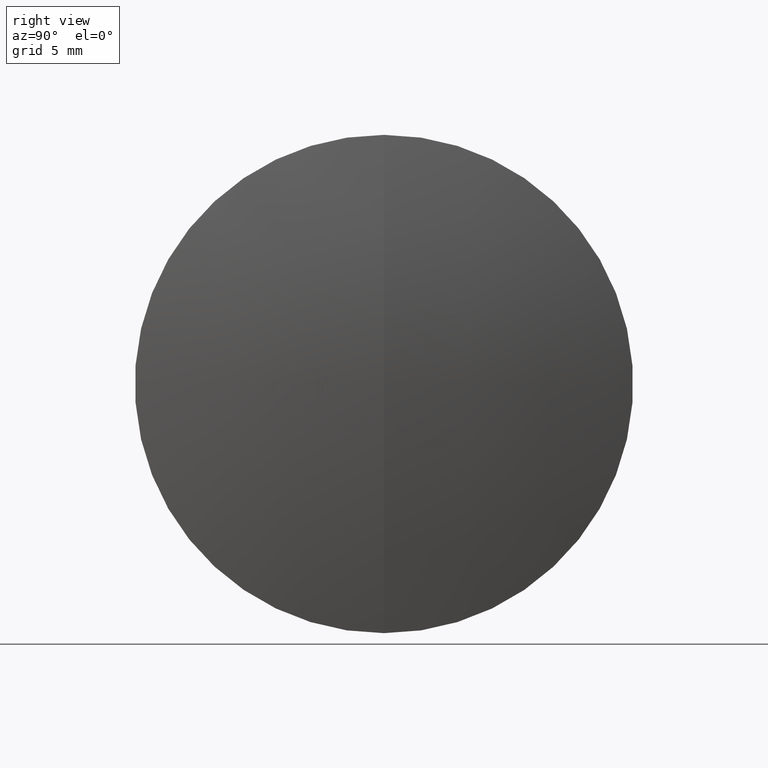
[diagram: clean part render]
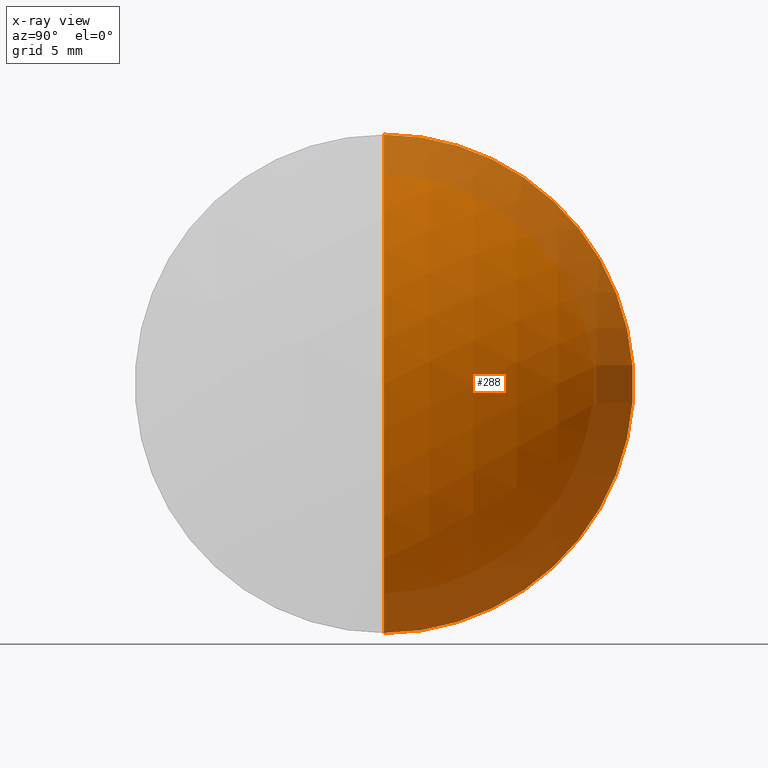
[diagram: x-ray — body ghosted, one internal face saturated and labeled with its STEP entity id]
A machine part, right view, then the same camera in x-ray: the body is ghosted and one INTERNAL B-rep face — a face not visible from any outside direction — is saturated and labeled: STEP entity #288.
In plain terms, the highlighted spherical surface has radius 22.7 mm.
Its self-contained STEP definition (entity closure, byte-faithful):
#3 = EDGE_CURVE ( 'NONE', #146, #319, #222, .T. ) ;
#6 = DIRECTION ( 'NONE',  ( 0.0000000000000000000, -1.000000000000000000, 0.0000000000000000000 ) ) ;
#10 = AXIS2_PLACEMENT_3D ( 'NONE', #324, #6, #102 ) ;
#11 = ORIENTED_EDGE ( 'NONE', *, *, #153, .F. ) ;
#28 = DIRECTION ( 'NONE',  ( 0.0000000000000000000, 1.000000000000000000, 0.0000000000000000000 ) ) ;
#60 = DIRECTION ( 'NONE',  ( -1.000000000000000000, -0.0000000000000000000, -0.0000000000000000000 ) ) ;
#77 = ORIENTED_EDGE ( 'NONE', *, *, #3, .T. ) ;
#86 = ORIENTED_EDGE ( 'NONE', *, *, #106, .F. ) ;
#95 = CIRCLE ( 'NONE', #10, 22.69999999999999900 ) ;
#102 = DIRECTION ( 'NONE',  ( 0.0000000000000000000, 0.0000000000000000000, -1.000000000000000000 ) ) ;
#106 = EDGE_CURVE ( 'NONE', #194, #319, #330, .T. ) ;
#120 = CARTESIAN_POINT ( 'NONE',  ( 15.44659696245503600, 1.836970198721029200E-015, -14.99999999999999600 ) ) ;
#125 = DIRECTION ( 'NONE',  ( -0.0000000000000000000, 1.000000000000000000, 1.224646799147353200E-016 ) ) ;
#136 = AXIS2_PLACEMENT_3D ( 'NONE', #156, #60, #267 ) ;
#139 = FACE_OUTER_BOUND ( 'NONE', #261, .T. ) ;
#146 = VERTEX_POINT ( 'NONE', #197 ) ;
#152 = CARTESIAN_POINT ( 'NONE',  ( -1.591301969044699400, 0.0000000000000000000, -1.814584121802784700E-015 ) ) ;
#153 = EDGE_CURVE ( 'NONE', #146, #194, #95, .T. ) ;
#156 = CARTESIAN_POINT ( 'NONE',  ( 15.44659696245503600, 0.0000000000000000000, 0.0000000000000000000 ) ) ;
#166 = CARTESIAN_POINT ( 'NONE',  ( 15.44659696245503600, 0.0000000000000000000, 14.99999999999999600 ) ) ;
#167 = DIRECTION ( 'NONE',  ( 0.0000000000000000000, 0.0000000000000000000, 1.000000000000000000 ) ) ;
#194 = VERTEX_POINT ( 'NONE', #166 ) ;
#197 = CARTESIAN_POINT ( 'NONE',  ( 21.10869803095529900, 0.0000000000000000000, -4.246100047705388600E-016 ) ) ;
#222 = CIRCLE ( 'NONE', #318, 22.69999999999999900 ) ;
#224 = SPHERICAL_SURFACE ( 'NONE', #263, 22.69999999999999900 ) ;
#252 = CARTESIAN_POINT ( 'NONE',  ( -1.591301969044699400, 0.0000000000000000000, -1.814584121802784700E-015 ) ) ;
#261 = EDGE_LOOP ( 'NONE', ( #11, #77, #86 ) ) ;
#263 = AXIS2_PLACEMENT_3D ( 'NONE', #252, #28, #167 ) ;
#267 = DIRECTION ( 'NONE',  ( 0.0000000000000000000, 0.0000000000000000000, 1.000000000000000000 ) ) ;
#285 = DIRECTION ( 'NONE',  ( 0.0000000000000000000, -1.224646799147353200E-016, 1.000000000000000000 ) ) ;
#288 = ADVANCED_FACE ( 'NONE', ( #139 ), #224, .T. ) ;
#318 = AXIS2_PLACEMENT_3D ( 'NONE', #152, #125, #285 ) ;
#319 = VERTEX_POINT ( 'NONE', #120 ) ;
#324 = CARTESIAN_POINT ( 'NONE',  ( -1.591301969044699400, 0.0000000000000000000, -1.814584121802784700E-015 ) ) ;
#330 = CIRCLE ( 'NONE', #136, 14.99999999999999600 ) ;